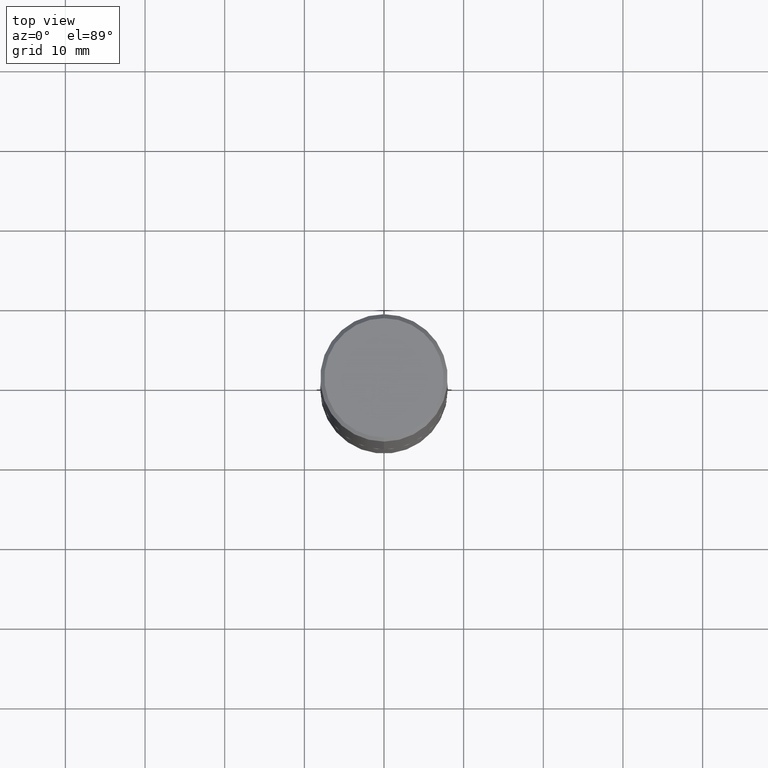
[diagram: clean part render]
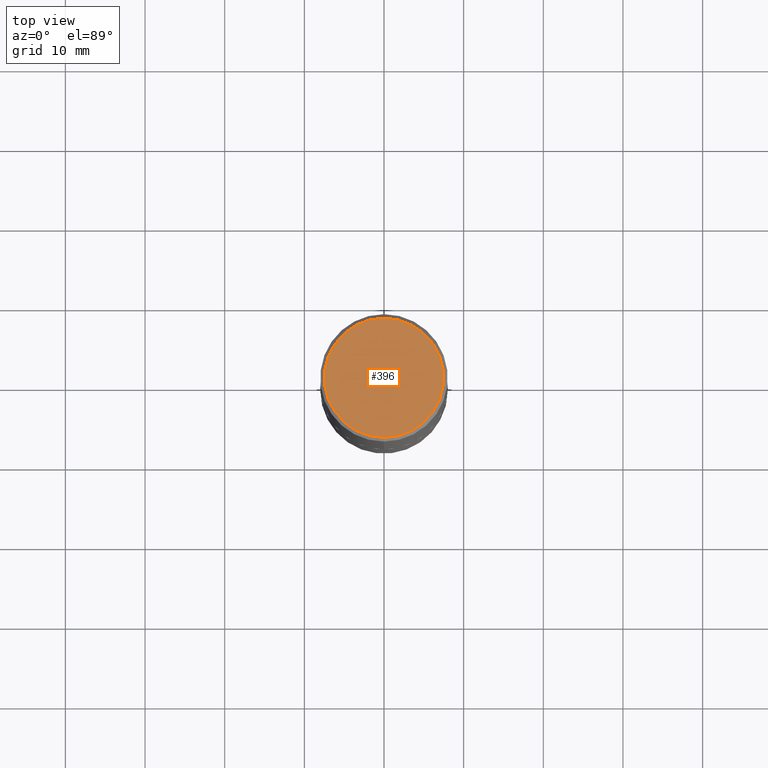
[diagram: same view with one face highlighted and labeled with its STEP entity id]
A machine part, top view. The second image highlights one B-rep face of the part: STEP entity #396.
In plain terms, the highlighted planar face has unit normal (0, -0, -1).
Its self-contained STEP definition (entity closure, byte-faithful):
#5 = EDGE_CURVE ( 'NONE', #13, #195, #62, .T. ) ;
#13 = VERTEX_POINT ( 'NONE', #159 ) ;
#29 = DIRECTION ( 'NONE',  ( -2.445102122258518808E-29, 3.492006451096415256E-15, 1.000000000000000000 ) ) ;
#62 = CIRCLE ( 'NONE', #210, 0.2949499999999999345 ) ;
#91 = ORIENTED_EDGE ( 'NONE', *, *, #232, .T. ) ;
#141 = FACE_OUTER_BOUND ( 'NONE', #194, .T. ) ;
#159 = CARTESIAN_POINT ( 'NONE',  ( -2.092108864420428031E-15, -0.2949499999999999345, 1.060001772040692191E-15 ) ) ;
#170 = DIRECTION ( 'NONE',  ( -6.982962677686267499E-15, -1.000000000000000000, 3.492006451096415256E-15 ) ) ;
#181 = DIRECTION ( 'NONE',  ( 6.982962677686265922E-15, 1.000000000000000000, -3.492006451096415256E-15 ) ) ;
#183 = DIRECTION ( 'NONE',  ( 2.445102122258518528E-29, -3.492006451096415256E-15, -1.000000000000000000 ) ) ;
#194 = EDGE_LOOP ( 'NONE', ( #91, #222 ) ) ;
#195 = VERTEX_POINT ( 'NONE', #206 ) ;
#206 = CARTESIAN_POINT ( 'NONE',  ( 2.129454468560426967E-15, 0.2949499999999999345, -9.999328334610827920E-16 ) ) ;
#210 = AXIS2_PLACEMENT_3D ( 'NONE', #299, #412, #330 ) ;
#219 = CIRCLE ( 'NONE', #393, 0.2949499999999999345 ) ;
#222 = ORIENTED_EDGE ( 'NONE', *, *, #5, .T. ) ;
#232 = EDGE_CURVE ( 'NONE', #195, #13, #219, .T. ) ;
#240 = AXIS2_PLACEMENT_3D ( 'NONE', #347, #183, #181 ) ;
#299 = CARTESIAN_POINT ( 'NONE',  ( -7.343734460140996692E-46, 1.048805605152554396E-31, 3.003446928980477950E-17 ) ) ;
#330 = DIRECTION ( 'NONE',  ( -6.982962677686267499E-15, -1.000000000000000000, 3.492006451096415256E-15 ) ) ;
#347 = CARTESIAN_POINT ( 'NONE',  ( 2.059624841783564063E-15, 0.2949499999999999345, -1.014950068105985043E-15 ) ) ;
#348 = CARTESIAN_POINT ( 'NONE',  ( -7.343734460140996692E-46, 1.048805605152554396E-31, 3.003446928980477950E-17 ) ) ;
#379 = PLANE ( 'NONE',  #240 ) ;
#393 = AXIS2_PLACEMENT_3D ( 'NONE', #348, #29, #170 ) ;
#396 = ADVANCED_FACE ( 'NONE', ( #141 ), #379, .F. ) ;
#412 = DIRECTION ( 'NONE',  ( -2.445102122258518808E-29, 3.492006451096415256E-15, 1.000000000000000000 ) ) ;